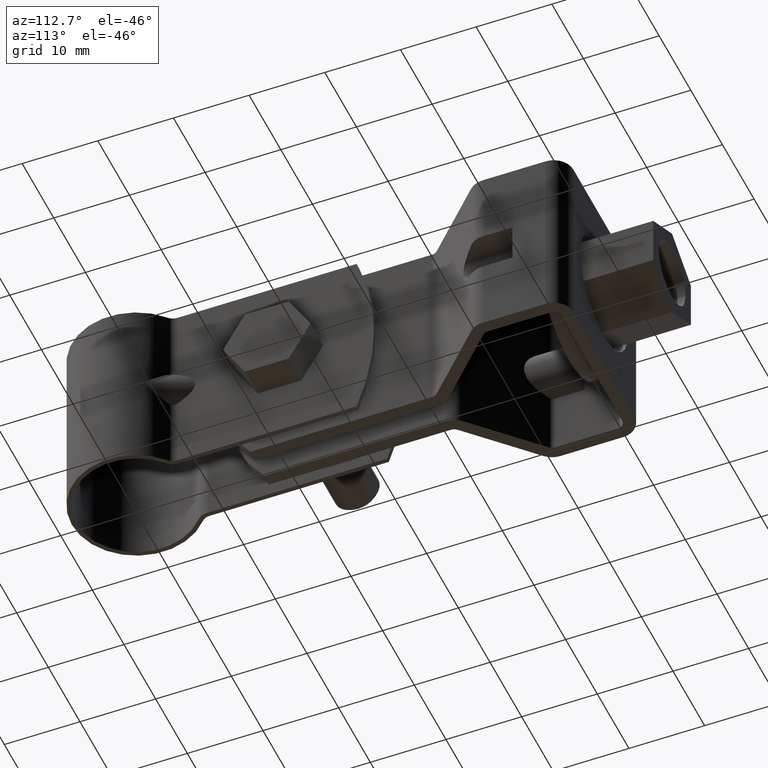
[diagram: clean part render]
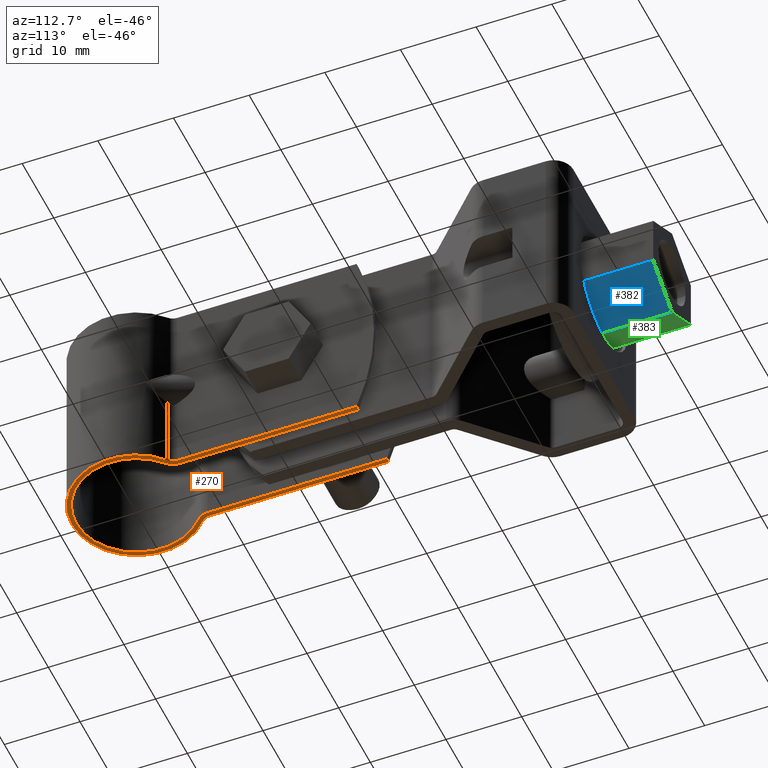
[diagram: same view with three faces highlighted in distinct colors, each labeled with its STEP entity id]
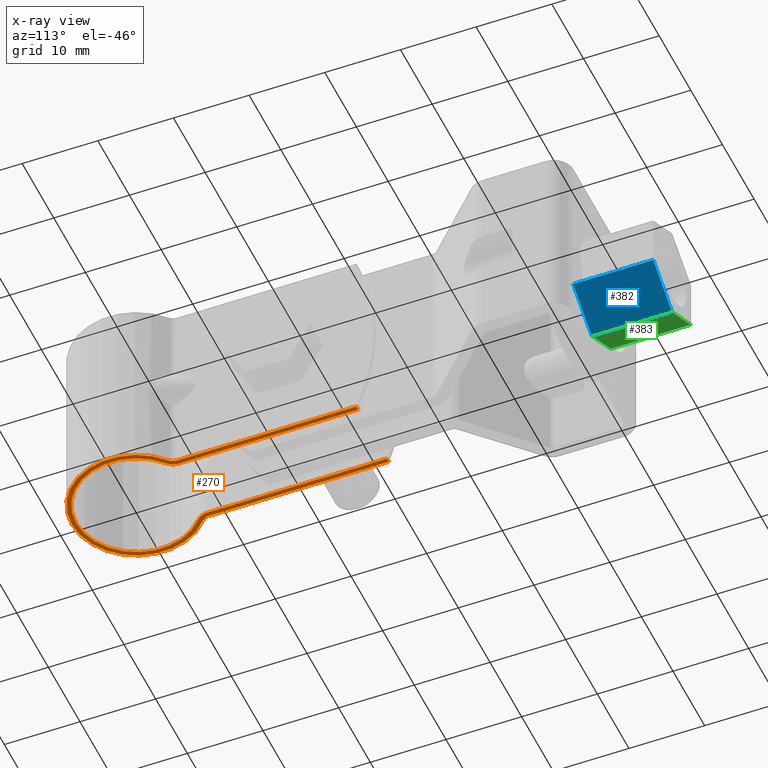
[diagram: x-ray of the same camera — body ghosted, the three highlighted faces saturated]
A machine part, auxiliary view with three faces highlighted in distinct colors.
The next image is the same camera in x-ray (body ghosted, the three faces saturated) — at least one of them is partly hidden behind the body in this view.
Their STEP definitions:

[orange] entity #270 — the highlighted planar face has unit normal (0, 0, -1).
#270 = ADVANCED_FACE( '', ( #388 ), #389, .T. );
#388 = FACE_OUTER_BOUND( '', #652, .T. );
#389 = PLANE( '', #653 );
#652 = EDGE_LOOP( '', ( #929, #930, #931, #932, #933, #934, #935, #936, #937, #938, #939, #940 ) );
#653 = AXIS2_PLACEMENT_3D( '', #941, #942, #943 );
#929 = ORIENTED_EDGE( '', *, *, #1870, .F. );
#930 = ORIENTED_EDGE( '', *, *, #1871, .F. );
#931 = ORIENTED_EDGE( '', *, *, #1868, .F. );
#932 = ORIENTED_EDGE( '', *, *, #1872, .F. );
#933 = ORIENTED_EDGE( '', *, *, #1873, .F. );
#934 = ORIENTED_EDGE( '', *, *, #1874, .F. );
#935 = ORIENTED_EDGE( '', *, *, #1875, .F. );
#936 = ORIENTED_EDGE( '', *, *, #1876, .T. );
#937 = ORIENTED_EDGE( '', *, *, #1877, .T. );
#938 = ORIENTED_EDGE( '', *, *, #1878, .T. );
#939 = ORIENTED_EDGE( '', *, *, #1879, .T. );
#940 = ORIENTED_EDGE( '', *, *, #1880, .T. );
#941 = CARTESIAN_POINT( '', ( 4.50000000000000, 7.52021276294762, -12.5000000000000 ) );
#942 = DIRECTION( '', ( 0.000000000000000, 0.000000000000000, -1.00000000000000 ) );
#943 = DIRECTION( '', ( 6.06692130572647E-017, 1.00000000000000, 0.000000000000000 ) );
#1868 = EDGE_CURVE( '', #2210, #2212, #2213, .F. );
#1870 = EDGE_CURVE( '', #2215, #2216, #2217, .F. );
#1871 = EDGE_CURVE( '', #2212, #2215, #2218, .T. );
#1872 = EDGE_CURVE( '', #2219, #2210, #2220, .T. );
#1873 = EDGE_CURVE( '', #2221, #2219, #2222, .F. );
#1874 = EDGE_CURVE( '', #2223, #2221, #2224, .T. );
#1875 = EDGE_CURVE( '', #2225, #2223, #2226, .F. );
#1876 = EDGE_CURVE( '', #2225, #2227, #2228, .T. );
#1877 = EDGE_CURVE( '', #2227, #2229, #2230, .T. );
#1878 = EDGE_CURVE( '', #2229, #2231, #2232, .T. );
#1879 = EDGE_CURVE( '', #2231, #2233, #2234, .T. );
#1880 = EDGE_CURVE( '', #2233, #2216, #2235, .T. );
#2210 = VERTEX_POINT( '', #2714 );
#2212 = VERTEX_POINT( '', #2717 );
#2213 = CIRCLE( '', #2718, 1.40000000000000 );
#2215 = VERTEX_POINT( '', #2721 );
#2216 = VERTEX_POINT( '', #2722 );
#2217 = LINE( '', #2723, #2724 );
#2218 = LINE( '', #2725, #2726 );
#2219 = VERTEX_POINT( '', #2727 );
#2220 = CIRCLE( '', #2728, 8.54000000000000 );
#2221 = VERTEX_POINT( '', #2729 );
#2222 = CIRCLE( '', #2730, 1.40000000000000 );
#2223 = VERTEX_POINT( '', #2731 );
#2224 = LINE( '', #2732, #2733 );
#2225 = VERTEX_POINT( '', #2734 );
#2226 = LINE( '', #2735, #2736 );
#2227 = VERTEX_POINT( '', #2737 );
#2228 = LINE( '', #2738, #2739 );
#2229 = VERTEX_POINT( '', #2740 );
#2230 = CIRCLE( '', #2741, 2.00000000000000 );
#2231 = VERTEX_POINT( '', #2742 );
#2232 = CIRCLE( '', #2743, 7.94000000000000 );
#2233 = VERTEX_POINT( '', #2744 );
#2234 = CIRCLE( '', #2745, 2.00000000000000 );
#2235 = LINE( '', #2746, #2747 );
#2714 = CARTESIAN_POINT( '', ( 5.58450704225353, 6.46102786675781, -12.5000000000000 ) );
#2717 = CARTESIAN_POINT( '', ( 5.10000000000000, 7.52021276294762, -12.5000000000000 ) );
#2718 = AXIS2_PLACEMENT_3D( '', #3547, #3548, #3549 );
#2721 = CARTESIAN_POINT( '', ( 5.10000000000000, 31.2334238175143, -12.5000000000000 ) );
#2722 = CARTESIAN_POINT( '', ( 4.50000000000000, 31.2334238175143, -12.5000000000000 ) );
#2723 = CARTESIAN_POINT( '', ( -45.1173298082391, 31.2334238175143, -12.5000000000000 ) );
#2724 = VECTOR( '', #3551, 1000.00000000000 );
#2725 = CARTESIAN_POINT( '', ( 5.10000000000000, 7.52021276294762, -12.5000000000000 ) );
#2726 = VECTOR( '', #3552, 1000.00000000000 );
#2727 = CARTESIAN_POINT( '', ( -5.58450704225352, 6.46102786675780, -12.5000000000000 ) );
#2728 = AXIS2_PLACEMENT_3D( '', #3553, #3554, #3555 );
#2729 = CARTESIAN_POINT( '', ( -5.10000000000000, 7.52021276294762, -12.5000000000000 ) );
#2730 = AXIS2_PLACEMENT_3D( '', #3556, #3557, #3558 );
#2731 = CARTESIAN_POINT( '', ( -5.10000000000000, 31.2334238175143, -12.5000000000000 ) );
#2732 = CARTESIAN_POINT( '', ( -5.10000000000000, 33.5416817409593, -12.5000000000000 ) );
#2733 = VECTOR( '', #3559, 1000.00000000000 );
#2734 = CARTESIAN_POINT( '', ( -4.50000000000000, 31.2334238175143, -12.5000000000000 ) );
#2735 = CARTESIAN_POINT( '', ( -45.1173298082391, 31.2334238175143, -12.5000000000000 ) );
#2736 = VECTOR( '', #3560, 1000.00000000000 );
#2737 = CARTESIAN_POINT( '', ( -4.50000000000000, 7.52021276294762, -12.5000000000000 ) );
#2738 = CARTESIAN_POINT( '', ( -4.50000000000000, 33.5416817409593, -12.5000000000000 ) );
#2739 = VECTOR( '', #3561, 1000.00000000000 );
#2740 = CARTESIAN_POINT( '', ( -5.19215291750504, 6.00709148267647, -12.5000000000000 ) );
#2741 = AXIS2_PLACEMENT_3D( '', #3562, #3563, #3564 );
#2742 = CARTESIAN_POINT( '', ( 5.19215291750503, 6.00709148267646, -12.5000000000000 ) );
#2743 = AXIS2_PLACEMENT_3D( '', #3565, #3566, #3567 );
#2744 = CARTESIAN_POINT( '', ( 4.50000000000000, 7.52021276294762, -12.5000000000000 ) );
#2745 = AXIS2_PLACEMENT_3D( '', #3568, #3569, #3570 );
#2746 = CARTESIAN_POINT( '', ( 4.50000000000000, 7.52021276294762, -12.5000000000000 ) );
#2747 = VECTOR( '', #3571, 1000.00000000000 );
#3547 = CARTESIAN_POINT( '', ( 6.50000000000000, 7.52021276294762, -12.5000000000000 ) );
#3548 = DIRECTION( '', ( 0.000000000000000, 0.000000000000000, 1.00000000000000 ) );
#3549 = DIRECTION( '', ( 1.00000000000000, 0.000000000000000, 0.000000000000000 ) );
#3551 = DIRECTION( '', ( 1.00000000000000, -6.06692130572647E-017, -3.08148791101958E-033 ) );
#3552 = DIRECTION( '', ( 6.06692130572647E-017, 1.00000000000000, 0.000000000000000 ) );
#3553 = CARTESIAN_POINT( '', ( 0.000000000000000, 0.000000000000000, -12.5000000000000 ) );
#3554 = DIRECTION( '', ( 0.000000000000000, 0.000000000000000, 1.00000000000000 ) );
#3555 = DIRECTION( '', ( 1.00000000000000, 0.000000000000000, 0.000000000000000 ) );
#3556 = CARTESIAN_POINT( '', ( -6.50000000000000, 7.52021276294762, -12.5000000000000 ) );
#3557 = DIRECTION( '', ( 0.000000000000000, 0.000000000000000, 1.00000000000000 ) );
#3558 = DIRECTION( '', ( 1.00000000000000, 0.000000000000000, 0.000000000000000 ) );
#3559 = DIRECTION( '', ( -6.06692130572647E-017, -1.00000000000000, 0.000000000000000 ) );
#3560 = DIRECTION( '', ( 1.00000000000000, -6.06692130572647E-017, -3.08148791101958E-033 ) );
#3561 = DIRECTION( '', ( -6.06692130572647E-017, -1.00000000000000, 0.000000000000000 ) );
#3562 = CARTESIAN_POINT( '', ( -6.50000000000000, 7.52021276294762, -12.5000000000000 ) );
#3563 = DIRECTION( '', ( 0.000000000000000, 0.000000000000000, -1.00000000000000 ) );
#3564 = DIRECTION( '', ( 1.00000000000000, -6.06692130572647E-017, 0.000000000000000 ) );
#3565 = CARTESIAN_POINT( '', ( 0.000000000000000, 0.000000000000000, -12.5000000000000 ) );
#3566 = DIRECTION( '', ( 0.000000000000000, 0.000000000000000, 1.00000000000000 ) );
#3567 = DIRECTION( '', ( 1.00000000000000, -6.06692130572647E-017, 0.000000000000000 ) );
#3568 = CARTESIAN_POINT( '', ( 6.50000000000000, 7.52021276294762, -12.5000000000000 ) );
#3569 = DIRECTION( '', ( 0.000000000000000, 0.000000000000000, -1.00000000000000 ) );
#3570 = DIRECTION( '', ( -1.00000000000000, 6.06692130572647E-017, 0.000000000000000 ) );
#3571 = DIRECTION( '', ( 6.06692130572647E-017, 1.00000000000000, 0.000000000000000 ) );

[blue] entity #382 — the highlighted planar face has unit normal (-0.5, -0, 0.866).
#382 = ADVANCED_FACE( '', ( #643 ), #644, .F. );
#643 = FACE_OUTER_BOUND( '', #915, .T. );
#644 = PLANE( '', #916 );
#915 = EDGE_LOOP( '', ( #1842, #1843, #1844, #1845 ) );
#916 = AXIS2_PLACEMENT_3D( '', #1846, #1847, #1848 );
#1842 = ORIENTED_EDGE( '', *, *, #2191, .T. );
#1843 = ORIENTED_EDGE( '', *, *, #2204, .F. );
#1844 = ORIENTED_EDGE( '', *, *, #2205, .F. );
#1845 = ORIENTED_EDGE( '', *, *, #2202, .T. );
#1846 = CARTESIAN_POINT( '', ( 5.95000000377420, 70.7916808436828, -3.43523262449590 ) );
#1847 = DIRECTION( '', ( -0.499999999983745, -8.63897139172214E-009, 0.866025403793824 ) );
#1848 = DIRECTION( '', ( 0.866025403793824, -5.00386412104938E-009, 0.499999999983745 ) );
#2191 = EDGE_CURVE( '', #2685, #2683, #2686, .T. );
#2202 = EDGE_CURVE( '', #2704, #2685, #2705, .T. );
#2204 = EDGE_CURVE( '', #2707, #2683, #2708, .T. );
#2205 = EDGE_CURVE( '', #2704, #2707, #2709, .T. );
#2683 = VERTEX_POINT( '', #3501 );
#2685 = VERTEX_POINT( '', #3504 );
#2686 = LINE( '', #3505, #3506 );
#2704 = VERTEX_POINT( '', #3531 );
#2705 = LINE( '', #3532, #3533 );
#2707 = VERTEX_POINT( '', #3536 );
#2708 = LINE( '', #3537, #3538 );
#2709 = LINE( '', #3539, #3540 );
#3501 = CARTESIAN_POINT( '', ( 3.56144662700905E-009, 60.1916808780616, -6.87046683188761 ) );
#3504 = CARTESIAN_POINT( '', ( 5.95000000362592, 60.1916808436828, -3.43523273032099 ) );
#3505 = CARTESIAN_POINT( '', ( 5.95000000362593, 60.1916808436828, -3.43523273032101 ) );
#3506 = VECTOR( '', #4088, 1000.00000000000 );
#3531 = CARTESIAN_POINT( '', ( 5.95000000377419, 70.7916808436828, -3.43523262449588 ) );
#3532 = CARTESIAN_POINT( '', ( 5.95000000377419, 70.7916808436828, -3.43523262449588 ) );
#3533 = VECTOR( '', #4105, 1000.00000000000 );
#3536 = CARTESIAN_POINT( '', ( 3.70971677955922E-009, 70.7916808780616, -6.87046672606249 ) );
#3537 = CARTESIAN_POINT( '', ( 3.70971677955922E-009, 70.7916808780616, -6.87046672606249 ) );
#3538 = VECTOR( '', #4107, 1000.00000000000 );
#3539 = CARTESIAN_POINT( '', ( 5.95000000377420, 70.7916808436828, -3.43523262449590 ) );
#3540 = VECTOR( '', #4108, 1000.00000000000 );
#4088 = DIRECTION( '', ( -0.866025403793824, 5.00386412104938E-009, -0.499999999983745 ) );
#4105 = DIRECTION( '', ( -1.39877502405819E-011, -1.00000000000000, -9.98350074832280E-009 ) );
#4107 = DIRECTION( '', ( -1.39877502405819E-011, -1.00000000000000, -9.98350074832280E-009 ) );
#4108 = DIRECTION( '', ( -0.866025403793824, 5.00386412104938E-009, -0.499999999983745 ) );

[green] entity #383 — the highlighted planar face has unit normal (0.5, -0, 0.866).
#383 = ADVANCED_FACE( '', ( #645 ), #646, .F. );
#645 = FACE_OUTER_BOUND( '', #917, .T. );
#646 = PLANE( '', #918 );
#917 = EDGE_LOOP( '', ( #1849, #1850, #1851, #1852 ) );
#918 = AXIS2_PLACEMENT_3D( '', #1853, #1854, #1855 );
#1849 = ORIENTED_EDGE( '', *, *, #2190, .T. );
#1850 = ORIENTED_EDGE( '', *, *, #2188, .F. );
#1851 = ORIENTED_EDGE( '', *, *, #2206, .F. );
#1852 = ORIENTED_EDGE( '', *, *, #2204, .T. );
#1853 = CARTESIAN_POINT( '', ( 3.70971070802705E-009, 70.7916808780616, -6.87046672606249 ) );
#1854 = DIRECTION( '', ( 0.500000000016255, -8.65295914177532E-009, 0.866025403775054 ) );
#1855 = DIRECTION( '', ( 0.866025403775054, 4.97963662727368E-009, -0.500000000016255 ) );
#2188 = EDGE_CURVE( '', #2678, #2673, #2680, .T. );
#2190 = EDGE_CURVE( '', #2683, #2673, #2684, .T. );
#2204 = EDGE_CURVE( '', #2707, #2683, #2708, .T. );
#2206 = EDGE_CURVE( '', #2707, #2678, #2710, .T. );
#2673 = VERTEX_POINT( '', #3487 );
#2678 = VERTEX_POINT( '', #3494 );
#2680 = LINE( '', #3497, #3498 );
#2683 = VERTEX_POINT( '', #3501 );
#2684 = LINE( '', #3502, #3503 );
#2707 = VERTEX_POINT( '', #3536 );
#2708 = LINE( '', #3537, #3538 );
#2710 = LINE( '', #3541, #3542 );
#3487 = CARTESIAN_POINT( '', ( -5.94999999637408, 60.1916808438492, -3.43523273009765 ) );
#3494 = CARTESIAN_POINT( '', ( -5.94999999622581, 70.7916808438492, -3.43523262427253 ) );
#3497 = CARTESIAN_POINT( '', ( -5.94999999622581, 70.7916808438492, -3.43523262427253 ) );
#3498 = VECTOR( '', #4083, 1000.00000000000 );
#3501 = CARTESIAN_POINT( '', ( 3.56144662700905E-009, 60.1916808780616, -6.87046683188761 ) );
#3502 = CARTESIAN_POINT( '', ( 3.56144055547688E-009, 60.1916808780616, -6.87046683188761 ) );
#3503 = VECTOR( '', #4087, 1000.00000000000 );
#3536 = CARTESIAN_POINT( '', ( 3.70971677955922E-009, 70.7916808780616, -6.87046672606249 ) );
#3537 = CARTESIAN_POINT( '', ( 3.70971677955922E-009, 70.7916808780616, -6.87046672606249 ) );
#3538 = VECTOR( '', #4107, 1000.00000000000 );
#3541 = CARTESIAN_POINT( '', ( 3.70971070802705E-009, 70.7916808780616, -6.87046672606249 ) );
#3542 = VECTOR( '', #4109, 1000.00000000000 );
#4083 = DIRECTION( '', ( -1.39877502405819E-011, -1.00000000000000, -9.98350074832280E-009 ) );
#4087 = DIRECTION( '', ( -0.866025403775054, -4.97963662727368E-009, 0.500000000016255 ) );
#4107 = DIRECTION( '', ( -1.39877502405819E-011, -1.00000000000000, -9.98350074832280E-009 ) );
#4109 = DIRECTION( '', ( -0.866025403775054, -4.97963662727368E-009, 0.500000000016255 ) );